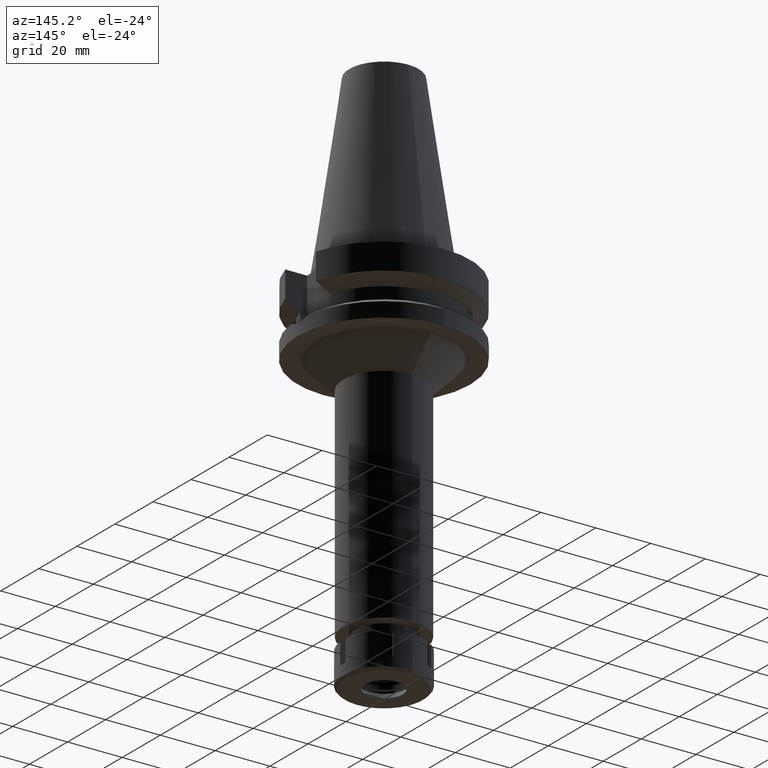
[diagram: clean part render]
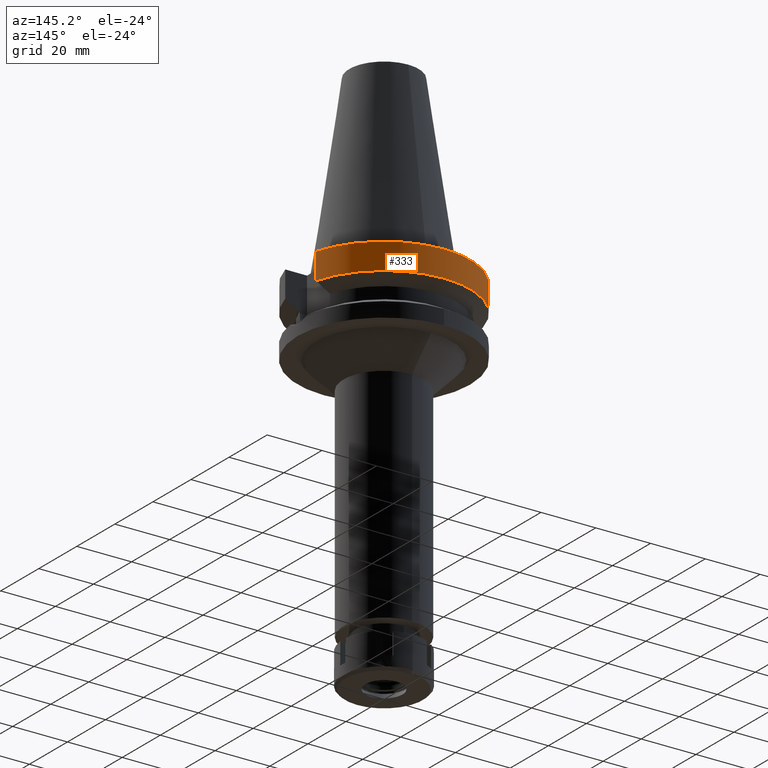
[diagram: same view with one face highlighted and labeled with its STEP entity id]
A machine part, auxiliary view. The second image highlights one B-rep face of the part: STEP entity #333.
In plain terms, the highlighted cylindrical surface (partial cylindrical patch) has radius 31.5 mm, axis along (0, 0, -1).
Its self-contained STEP definition (entity closure, byte-faithful):
#38 = CARTESIAN_POINT ( 'NONE',  ( 30.45402291367999936, 8.049999277817999399, -11.56551215720999970 ) ) ;
#141 = VERTEX_POINT ( 'NONE', #1700 ) ;
#333 = ADVANCED_FACE ( 'NONE', ( #2138 ), #2951, .T. ) ;
#417 = AXIS2_PLACEMENT_3D ( 'NONE', #1813, #1567, #2686 ) ;
#525 = AXIS2_PLACEMENT_3D ( 'NONE', #1867, #1243, #3265 ) ;
#566 = DIRECTION ( 'NONE',  ( 0.0000000000000000000, 0.0000000000000000000, -1.000000000000000000 ) ) ;
#646 = VECTOR ( 'NONE', #2309, 1000.000000000000227 ) ;
#705 = ORIENTED_EDGE ( 'NONE', *, *, #913, .F. ) ;
#760 = EDGE_CURVE ( 'NONE', #141, #1787, #1822, .T. ) ;
#771 = LINE ( 'NONE', #1030, #2941 ) ;
#909 = ORIENTED_EDGE ( 'NONE', *, *, #760, .T. ) ;
#913 = EDGE_CURVE ( 'NONE', #2240, #1787, #1481, .T. ) ;
#1030 = CARTESIAN_POINT ( 'NONE',  ( -30.45402272279000044, 8.050000000000000711, -2.000000000000000000 ) ) ;
#1172 = CARTESIAN_POINT ( 'NONE',  ( -30.45402162749000041, 8.050004143634000187, -11.56546832857999973 ) ) ;
#1184 = CARTESIAN_POINT ( 'NONE',  ( 30.45402291367999936, 8.049999277817999399, -11.56551215720999970 ) ) ;
#1243 = DIRECTION ( 'NONE',  ( 0.0000000000000000000, 0.0000000000000000000, -1.000000000000000000 ) ) ;
#1322 = ORIENTED_EDGE ( 'NONE', *, *, #1615, .F. ) ;
#1354 = CIRCLE ( 'NONE', #417, 31.50000000000000000 ) ;
#1481 = LINE ( 'NONE', #1184, #646 ) ;
#1520 = ORIENTED_EDGE ( 'NONE', *, *, #2917, .T. ) ;
#1541 = CARTESIAN_POINT ( 'NONE',  ( 30.45402272279000044, 8.050000000000000711, -2.000000000000000000 ) ) ;
#1567 = DIRECTION ( 'NONE',  ( 0.0000000000000000000, 0.0000000000000000000, 1.000000000000000000 ) ) ;
#1615 = EDGE_CURVE ( 'NONE', #141, #1726, #771, .T. ) ;
#1700 = CARTESIAN_POINT ( 'NONE',  ( -30.45402272279000044, 8.050000000000000711, -2.000000000000000000 ) ) ;
#1726 = VERTEX_POINT ( 'NONE', #1172 ) ;
#1741 = CARTESIAN_POINT ( 'NONE',  ( 0.0000000000000000000, 2.143989151267000102E-14, -2.000000000000000000 ) ) ;
#1761 = AXIS2_PLACEMENT_3D ( 'NONE', #1741, #566, #3612 ) ;
#1787 = VERTEX_POINT ( 'NONE', #1541 ) ;
#1813 = CARTESIAN_POINT ( 'NONE',  ( 0.0000000000000000000, 1.065333950388000029E-14, -11.56550565266999975 ) ) ;
#1822 = CIRCLE ( 'NONE', #1761, 31.50000000000000000 ) ;
#1867 = CARTESIAN_POINT ( 'NONE',  ( 0.0000000000000000000, 2.143989151267000102E-14, 75.06999999999999318 ) ) ;
#2095 = EDGE_LOOP ( 'NONE', ( #1322, #909, #705, #1520 ) ) ;
#2138 = FACE_OUTER_BOUND ( 'NONE', #2095, .T. ) ;
#2240 = VERTEX_POINT ( 'NONE', #38 ) ;
#2309 = DIRECTION ( 'NONE',  ( -1.995667361199989242E-08, 7.549852345328957263E-08, 0.9999999999999968914 ) ) ;
#2686 = DIRECTION ( 'NONE',  ( 0.0000000000000000000, 1.000000000000000000, 0.0000000000000000000 ) ) ;
#2917 = EDGE_CURVE ( 'NONE', #2240, #1726, #1354, .T. ) ;
#2941 = VECTOR ( 'NONE', #3291, 1000.000000000000000 ) ;
#2951 = CYLINDRICAL_SURFACE ( 'NONE', #525, 31.50000000000000000 ) ;
#3265 = DIRECTION ( 'NONE',  ( 0.0000000000000000000, -1.000000000000000000, 0.0000000000000000000 ) ) ;
#3291 = DIRECTION ( 'NONE',  ( 1.145056702697999524E-07, 4.331867743845997836E-07, -0.9999999999998996358 ) ) ;
#3612 = DIRECTION ( 'NONE',  ( 0.0000000000000000000, 1.000000000000000000, 0.0000000000000000000 ) ) ;